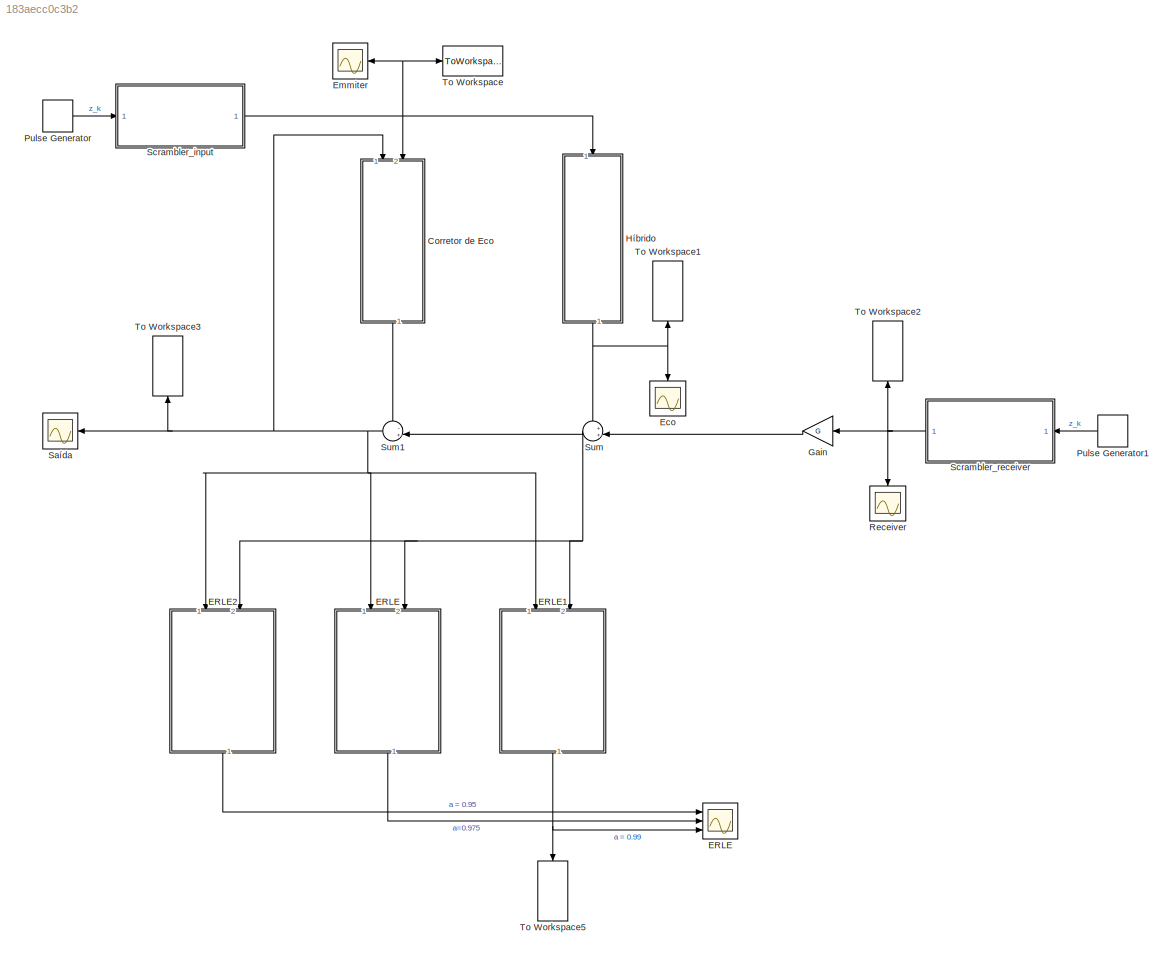
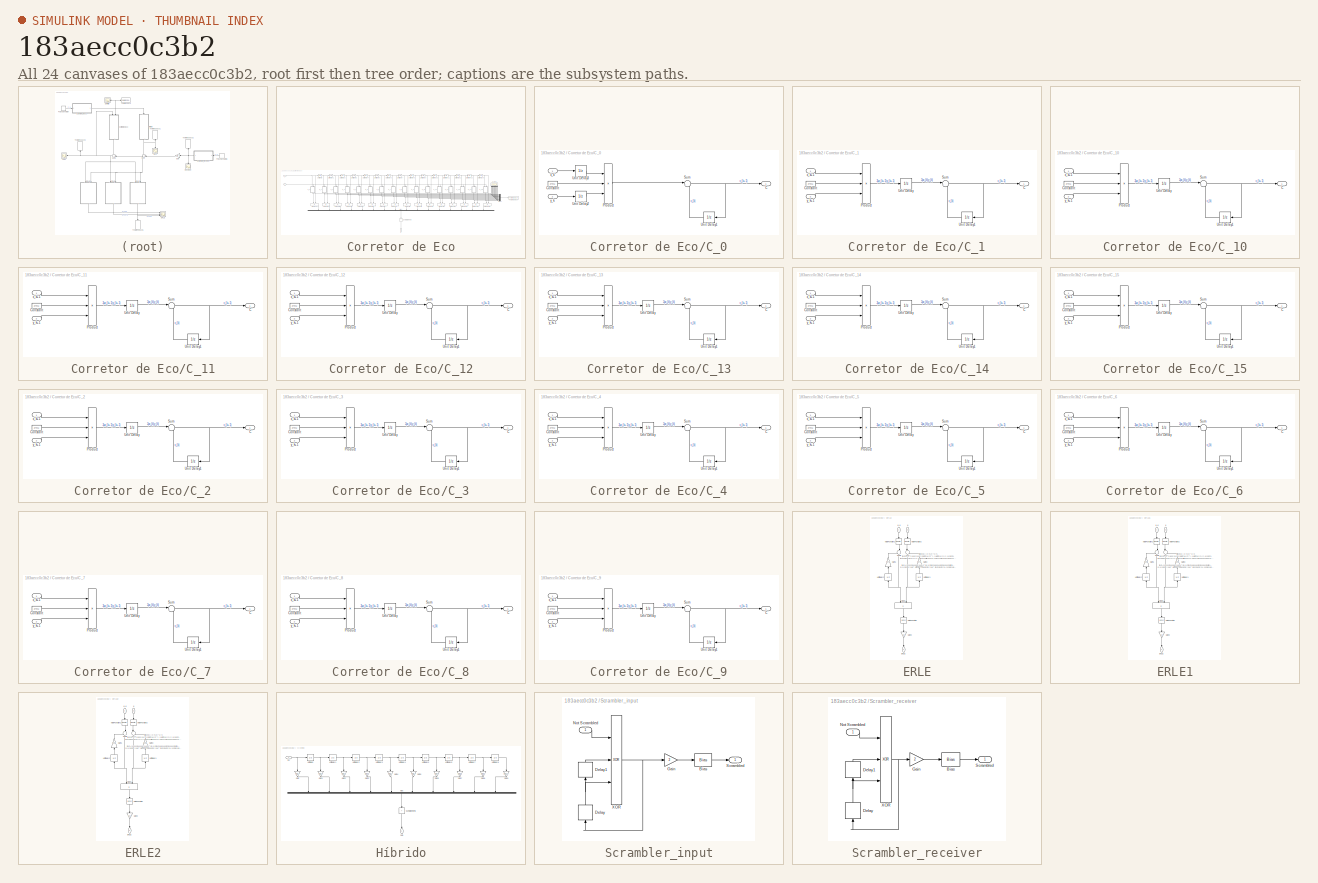
[diagram: thumbnail index - all 24 canvases of the model, root first then tree order]
MODEL slx_183aecc0c3b2
KIND model
CONFIG AbsTol = auto
CONFIG EnableMultiTasking = off
CONFIG FixedStep = sampleTime
CONFIG MaxStep = auto
CONFIG MinStep = auto
CONFIG RelTol = 1e-3
CONFIG SampleTimeConstraint = Unconstrained
CONFIG Solver = FixedStepAuto
CONFIG SolverName = FixedStepAuto
CONFIG StartTime = 0.0
CONFIG StopTime = 1000.0
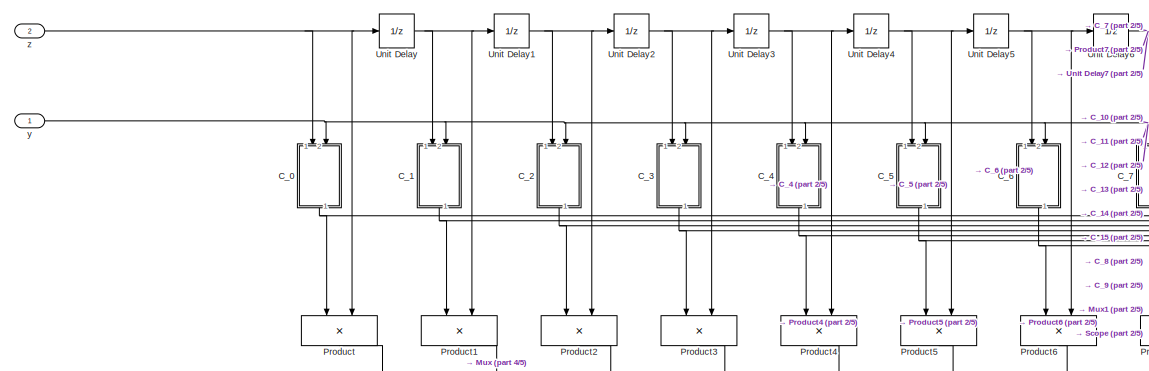
[diagram: Corretor de Eco - part 1/5, top left region]
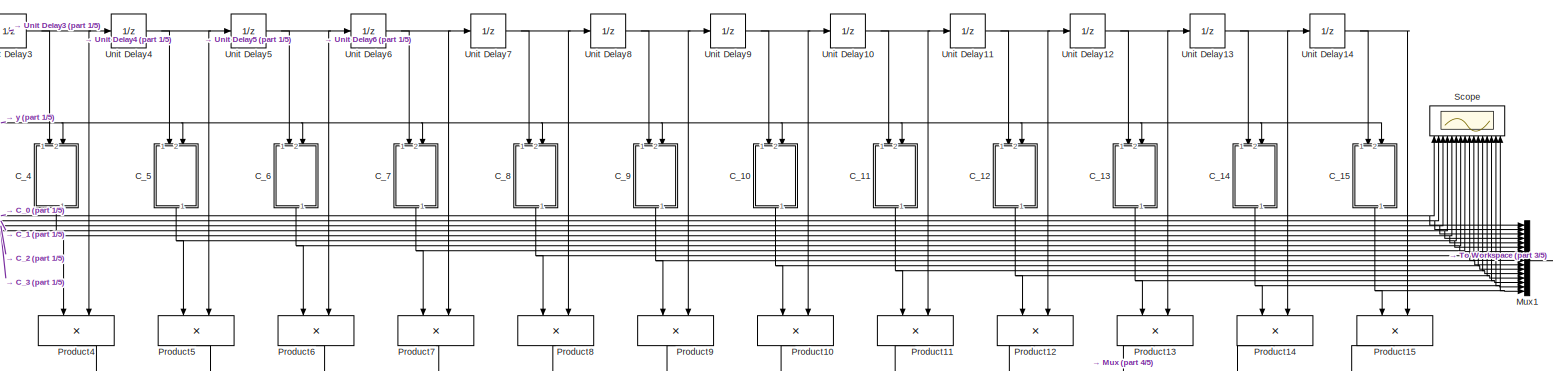
[diagram: Corretor de Eco - part 2/5, top center region]
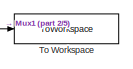
[diagram: Corretor de Eco - part 3/5, middle right region]
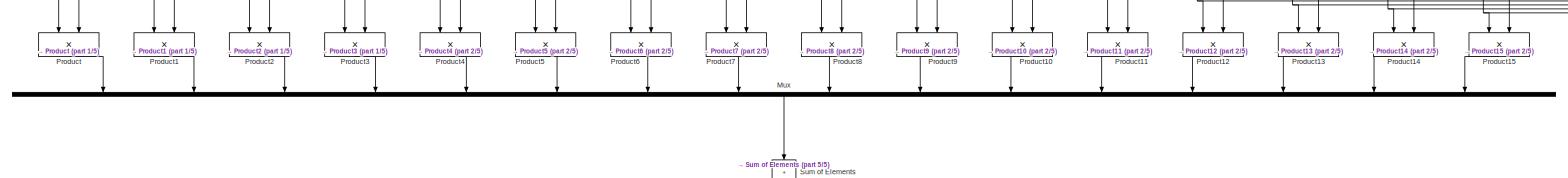
[diagram: Corretor de Eco - part 4/5, full width, middle band]
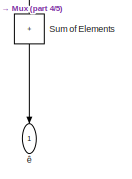
[diagram: Corretor de Eco - part 5/5, bottom center region]
BLOCK [SubSystem] Corretor de Eco
  NameLocation = left
  Ports = [2, 1]
  RequestExecContextInheritance = off
BLOCK [SubSystem] Corretor de Eco/C_0
  NameLocation = left
  Ports = [2, 1]
  RequestExecContextInheritance = off
BLOCK [Outport] Corretor de Eco/C_0/C
  VectorParamsAs1DForOutWhenUnconnected = off
BLOCK [Constant] Corretor de Eco/C_0/Constant
  Value = 2*mu
BLOCK [Product] Corretor de Eco/C_0/Product
  Inputs = 3
  Ports = [3, 1]
BLOCK [Sum] Corretor de Eco/C_0/Sum
  Inputs = |++
  Ports = [2, 1]
BLOCK [UnitDelay] Corretor de Eco/C_0/Unit Delay1
  HasFrameUpgradeWarning = on
  NameLocation = top
  SampleTime = -1
BLOCK [UnitDelay] Corretor de Eco/C_0/Unit Delay2
  HasFrameUpgradeWarning = on
  SampleTime = -1
BLOCK [UnitDelay] Corretor de Eco/C_0/Unit Delay3
  HasFrameUpgradeWarning = on
  SampleTime = -1
BLOCK [Inport] Corretor de Eco/C_0/x_k
BLOCK [Inport] Corretor de Eco/C_0/y_k
  Port = 2
BLOCK [SubSystem] Corretor de Eco/C_1
  NameLocation = left
  Ports = [2, 1]
  RequestExecContextInheritance = off
BLOCK [Outport] Corretor de Eco/C_1/C
  VectorParamsAs1DForOutWhenUnconnected = off
BLOCK [Constant] Corretor de Eco/C_1/Constant
  Value = 2*mu
BLOCK [Product] Corretor de Eco/C_1/Product
  Inputs = 3
  Ports = [3, 1]
BLOCK [Sum] Corretor de Eco/C_1/Sum
  Inputs = |++
  Ports = [2, 1]
BLOCK [UnitDelay] Corretor de Eco/C_1/Unit Delay
  HasFrameUpgradeWarning = on
  SampleTime = -1
BLOCK [UnitDelay] Corretor de Eco/C_1/Unit Delay1
  HasFrameUpgradeWarning = on
  NameLocation = top
  SampleTime = -1
BLOCK [Inport] Corretor de Eco/C_1/x_k+1
BLOCK [Inport] Corretor de Eco/C_1/y_k+1
  Port = 2
BLOCK [SubSystem] Corretor de Eco/C_10
  NameLocation = left
  Ports = [2, 1]
  RequestExecContextInheritance = off
BLOCK [Outport] Corretor de Eco/C_10/C
  VectorParamsAs1DForOutWhenUnconnected = off
BLOCK [Constant] Corretor de Eco/C_10/Constant
  Value = 2*mu
BLOCK [Product] Corretor de Eco/C_10/Product
  Inputs = 3
  Ports = [3, 1]
BLOCK [Sum] Corretor de Eco/C_10/Sum
  Inputs = |++
  Ports = [2, 1]
BLOCK [UnitDelay] Corretor de Eco/C_10/Unit Delay
  HasFrameUpgradeWarning = on
  SampleTime = -1
BLOCK [UnitDelay] Corretor de Eco/C_10/Unit Delay1
  HasFrameUpgradeWarning = on
  NameLocation = top
  SampleTime = -1
BLOCK [Inport] Corretor de Eco/C_10/x_k+1
BLOCK [Inport] Corretor de Eco/C_10/y_k+1
  Port = 2
BLOCK [SubSystem] Corretor de Eco/C_11
  NameLocation = left
  Ports = [2, 1]
  RequestExecContextInheritance = off
BLOCK [Outport] Corretor de Eco/C_11/C
  VectorParamsAs1DForOutWhenUnconnected = off
BLOCK [Constant] Corretor de Eco/C_11/Constant
  Value = 2*mu
BLOCK [Product] Corretor de Eco/C_11/Product
  Inputs = 3
  Ports = [3, 1]
BLOCK [Sum] Corretor de Eco/C_11/Sum
  Inputs = |++
  Ports = [2, 1]
BLOCK [UnitDelay] Corretor de Eco/C_11/Unit Delay
  HasFrameUpgradeWarning = on
  SampleTime = -1
BLOCK [UnitDelay] Corretor de Eco/C_11/Unit Delay1
  HasFrameUpgradeWarning = on
  NameLocation = top
  SampleTime = -1
BLOCK [Inport] Corretor de Eco/C_11/x_k+1
BLOCK [Inport] Corretor de Eco/C_11/y_k+1
  Port = 2
BLOCK [SubSystem] Corretor de Eco/C_12
  NameLocation = left
  Ports = [2, 1]
  RequestExecContextInheritance = off
BLOCK [Outport] Corretor de Eco/C_12/C
  VectorParamsAs1DForOutWhenUnconnected = off
BLOCK [Constant] Corretor de Eco/C_12/Constant
  Value = 2*mu
BLOCK [Product] Corretor de Eco/C_12/Product
  Inputs = 3
  Ports = [3, 1]
BLOCK [Sum] Corretor de Eco/C_12/Sum
  Inputs = |++
  Ports = [2, 1]
BLOCK [UnitDelay] Corretor de Eco/C_12/Unit Delay
  HasFrameUpgradeWarning = on
  SampleTime = -1
BLOCK [UnitDelay] Corretor de Eco/C_12/Unit Delay1
  HasFrameUpgradeWarning = on
  NameLocation = top
  SampleTime = -1
BLOCK [Inport] Corretor de Eco/C_12/x_k+1
BLOCK [Inport] Corretor de Eco/C_12/y_k+1
  Port = 2
BLOCK [SubSystem] Corretor de Eco/C_13
  NameLocation = left
  Ports = [2, 1]
  RequestExecContextInheritance = off
BLOCK [Outport] Corretor de Eco/C_13/C
  VectorParamsAs1DForOutWhenUnconnected = off
BLOCK [Constant] Corretor de Eco/C_13/Constant
  Value = 2*mu
BLOCK [Product] Corretor de Eco/C_13/Product
  Inputs = 3
  Ports = [3, 1]
BLOCK [Sum] Corretor de Eco/C_13/Sum
  Inputs = |++
  Ports = [2, 1]
BLOCK [UnitDelay] Corretor de Eco/C_13/Unit Delay
  HasFrameUpgradeWarning = on
  SampleTime = -1
BLOCK [UnitDelay] Corretor de Eco/C_13/Unit Delay1
  HasFrameUpgradeWarning = on
  NameLocation = top
  SampleTime = -1
BLOCK [Inport] Corretor de Eco/C_13/x_k+1
BLOCK [Inport] Corretor de Eco/C_13/y_k+1
  Port = 2
BLOCK [SubSystem] Corretor de Eco/C_14
  NameLocation = left
  Ports = [2, 1]
  RequestExecContextInheritance = off
BLOCK [Outport] Corretor de Eco/C_14/C
  VectorParamsAs1DForOutWhenUnconnected = off
BLOCK [Constant] Corretor de Eco/C_14/Constant
  Value = 2*mu
BLOCK [Product] Corretor de Eco/C_14/Product
  Inputs = 3
  Ports = [3, 1]
BLOCK [Sum] Corretor de Eco/C_14/Sum
  Inputs = |++
  Ports = [2, 1]
BLOCK [UnitDelay] Corretor de Eco/C_14/Unit Delay
  HasFrameUpgradeWarning = on
  SampleTime = -1
BLOCK [UnitDelay] Corretor de Eco/C_14/Unit Delay1
  HasFrameUpgradeWarning = on
  NameLocation = top
  SampleTime = -1
BLOCK [Inport] Corretor de Eco/C_14/x_k+1
BLOCK [Inport] Corretor de Eco/C_14/y_k+1
  Port = 2
BLOCK [SubSystem] Corretor de Eco/C_15
  NameLocation = left
  Ports = [2, 1]
  RequestExecContextInheritance = off
BLOCK [Outport] Corretor de Eco/C_15/C
  VectorParamsAs1DForOutWhenUnconnected = off
BLOCK [Constant] Corretor de Eco/C_15/Constant
  Value = 2*mu
BLOCK [Product] Corretor de Eco/C_15/Product
  Inputs = 3
  Ports = [3, 1]
BLOCK [Sum] Corretor de Eco/C_15/Sum
  Inputs = |++
  Ports = [2, 1]
BLOCK [UnitDelay] Corretor de Eco/C_15/Unit Delay
  HasFrameUpgradeWarning = on
  SampleTime = -1
BLOCK [UnitDelay] Corretor de Eco/C_15/Unit Delay1
  HasFrameUpgradeWarning = on
  NameLocation = top
  SampleTime = -1
BLOCK [Inport] Corretor de Eco/C_15/x_k+1
BLOCK [Inport] Corretor de Eco/C_15/y_k+1
  Port = 2
BLOCK [SubSystem] Corretor de Eco/C_2
  NameLocation = left
  Ports = [2, 1]
  RequestExecContextInheritance = off
BLOCK [Outport] Corretor de Eco/C_2/C
  VectorParamsAs1DForOutWhenUnconnected = off
BLOCK [Constant] Corretor de Eco/C_2/Constant
  Value = 2*mu
BLOCK [Product] Corretor de Eco/C_2/Product
  Inputs = 3
  Ports = [3, 1]
BLOCK [Sum] Corretor de Eco/C_2/Sum
  Inputs = |++
  Ports = [2, 1]
BLOCK [UnitDelay] Corretor de Eco/C_2/Unit Delay
  HasFrameUpgradeWarning = on
  SampleTime = -1
BLOCK [UnitDelay] Corretor de Eco/C_2/Unit Delay1
  HasFrameUpgradeWarning = on
  NameLocation = top
  SampleTime = -1
BLOCK [Inport] Corretor de Eco/C_2/x_k+1
BLOCK [Inport] Corretor de Eco/C_2/y_k+1
  Port = 2
BLOCK [SubSystem] Corretor de Eco/C_3
  NameLocation = left
  Ports = [2, 1]
  RequestExecContextInheritance = off
BLOCK [Outport] Corretor de Eco/C_3/C
  VectorParamsAs1DForOutWhenUnconnected = off
BLOCK [Constant] Corretor de Eco/C_3/Constant
  Value = 2*mu
BLOCK [Product] Corretor de Eco/C_3/Product
  Inputs = 3
  Ports = [3, 1]
BLOCK [Sum] Corretor de Eco/C_3/Sum
  Inputs = |++
  Ports = [2, 1]
BLOCK [UnitDelay] Corretor de Eco/C_3/Unit Delay
  HasFrameUpgradeWarning = on
  SampleTime = -1
BLOCK [UnitDelay] Corretor de Eco/C_3/Unit Delay1
  HasFrameUpgradeWarning = on
  NameLocation = top
  SampleTime = -1
BLOCK [Inport] Corretor de Eco/C_3/x_k+1
BLOCK [Inport] Corretor de Eco/C_3/y_k+1
  Port = 2
BLOCK [SubSystem] Corretor de Eco/C_4
  NameLocation = left
  Ports = [2, 1]
  RequestExecContextInheritance = off
BLOCK [Outport] Corretor de Eco/C_4/C
  VectorParamsAs1DForOutWhenUnconnected = off
BLOCK [Constant] Corretor de Eco/C_4/Constant
  Value = 2*mu
BLOCK [Product] Corretor de Eco/C_4/Product
  Inputs = 3
  Ports = [3, 1]
BLOCK [Sum] Corretor de Eco/C_4/Sum
  Inputs = |++
  Ports = [2, 1]
BLOCK [UnitDelay] Corretor de Eco/C_4/Unit Delay
  HasFrameUpgradeWarning = on
  SampleTime = -1
BLOCK [UnitDelay] Corretor de Eco/C_4/Unit Delay1
  HasFrameUpgradeWarning = on
  NameLocation = top
  SampleTime = -1
BLOCK [Inport] Corretor de Eco/C_4/x_k+1
BLOCK [Inport] Corretor de Eco/C_4/y_k+1
  Port = 2
BLOCK [SubSystem] Corretor de Eco/C_5
  NameLocation = left
  Ports = [2, 1]
  RequestExecContextInheritance = off
BLOCK [Outport] Corretor de Eco/C_5/C
  VectorParamsAs1DForOutWhenUnconnected = off
BLOCK [Constant] Corretor de Eco/C_5/Constant
  Value = 2*mu
BLOCK [Product] Corretor de Eco/C_5/Product
  Inputs = 3
  Ports = [3, 1]
BLOCK [Sum] Corretor de Eco/C_5/Sum
  Inputs = |++
  Ports = [2, 1]
BLOCK [UnitDelay] Corretor de Eco/C_5/Unit Delay
  HasFrameUpgradeWarning = on
  SampleTime = -1
BLOCK [UnitDelay] Corretor de Eco/C_5/Unit Delay1
  HasFrameUpgradeWarning = on
  NameLocation = top
  SampleTime = -1
BLOCK [Inport] Corretor de Eco/C_5/x_k+1
BLOCK [Inport] Corretor de Eco/C_5/y_k+1
  Port = 2
BLOCK [SubSystem] Corretor de Eco/C_6
  NameLocation = left
  Ports = [2, 1]
  RequestExecContextInheritance = off
BLOCK [Outport] Corretor de Eco/C_6/C
  VectorParamsAs1DForOutWhenUnconnected = off
BLOCK [Constant] Corretor de Eco/C_6/Constant
  Value = 2*mu
BLOCK [Product] Corretor de Eco/C_6/Product
  Inputs = 3
  Ports = [3, 1]
BLOCK [Sum] Corretor de Eco/C_6/Sum
  Inputs = |++
  Ports = [2, 1]
BLOCK [UnitDelay] Corretor de Eco/C_6/Unit Delay
  HasFrameUpgradeWarning = on
  SampleTime = -1
BLOCK [UnitDelay] Corretor de Eco/C_6/Unit Delay1
  HasFrameUpgradeWarning = on
  NameLocation = top
  SampleTime = -1
BLOCK [Inport] Corretor de Eco/C_6/x_k+1
BLOCK [Inport] Corretor de Eco/C_6/y_k+1
  Port = 2
BLOCK [SubSystem] Corretor de Eco/C_7
  NameLocation = left
  Ports = [2, 1]
  RequestExecContextInheritance = off
BLOCK [Outport] Corretor de Eco/C_7/C
  VectorParamsAs1DForOutWhenUnconnected = off
BLOCK [Constant] Corretor de Eco/C_7/Constant
  Value = 2*mu
BLOCK [Product] Corretor de Eco/C_7/Product
  Inputs = 3
  Ports = [3, 1]
BLOCK [Sum] Corretor de Eco/C_7/Sum
  Inputs = |++
  Ports = [2, 1]
BLOCK [UnitDelay] Corretor de Eco/C_7/Unit Delay
  HasFrameUpgradeWarning = on
  SampleTime = -1
BLOCK [UnitDelay] Corretor de Eco/C_7/Unit Delay1
  HasFrameUpgradeWarning = on
  NameLocation = top
  SampleTime = -1
BLOCK [Inport] Corretor de Eco/C_7/x_k+1
BLOCK [Inport] Corretor de Eco/C_7/y_k+1
  Port = 2
BLOCK [SubSystem] Corretor de Eco/C_8
  NameLocation = left
  Ports = [2, 1]
  RequestExecContextInheritance = off
BLOCK [Outport] Corretor de Eco/C_8/C
  VectorParamsAs1DForOutWhenUnconnected = off
BLOCK [Constant] Corretor de Eco/C_8/Constant
  Value = 2*mu
BLOCK [Product] Corretor de Eco/C_8/Product
  Inputs = 3
  Ports = [3, 1]
BLOCK [Sum] Corretor de Eco/C_8/Sum
  Inputs = |++
  Ports = [2, 1]
BLOCK [UnitDelay] Corretor de Eco/C_8/Unit Delay
  HasFrameUpgradeWarning = on
  SampleTime = -1
BLOCK [UnitDelay] Corretor de Eco/C_8/Unit Delay1
  HasFrameUpgradeWarning = on
  NameLocation = top
  SampleTime = -1
BLOCK [Inport] Corretor de Eco/C_8/x_k+1
BLOCK [Inport] Corretor de Eco/C_8/y_k+1
  Port = 2
BLOCK [SubSystem] Corretor de Eco/C_9
  NameLocation = left
  Ports = [2, 1]
  RequestExecContextInheritance = off
BLOCK [Outport] Corretor de Eco/C_9/C
  VectorParamsAs1DForOutWhenUnconnected = off
BLOCK [Constant] Corretor de Eco/C_9/Constant
  Value = 2*mu
BLOCK [Product] Corretor de Eco/C_9/Product
  Inputs = 3
  Ports = [3, 1]
BLOCK [Sum] Corretor de Eco/C_9/Sum
  Inputs = |++
  Ports = [2, 1]
BLOCK [UnitDelay] Corretor de Eco/C_9/Unit Delay
  HasFrameUpgradeWarning = on
  SampleTime = -1
BLOCK [UnitDelay] Corretor de Eco/C_9/Unit Delay1
  HasFrameUpgradeWarning = on
  NameLocation = top
  SampleTime = -1
BLOCK [Inport] Corretor de Eco/C_9/x_k+1
BLOCK [Inport] Corretor de Eco/C_9/y_k+1
  Port = 2
BLOCK [Mux] Corretor de Eco/Mux
  DisplayOption = bar
  Inputs = 16
  NameLocation = left
  Ports = [16, 1]
BLOCK [Mux] Corretor de Eco/Mux1
  DisplayOption = bar
  Inputs = 16
  Ports = [16, 1]
BLOCK [Product] Corretor de Eco/Product
  NameLocation = left
  Ports = [2, 1]
BLOCK [Product] Corretor de Eco/Product1
  NameLocation = left
  Ports = [2, 1]
BLOCK [Product] Corretor de Eco/Product10
  NameLocation = left
  Ports = [2, 1]
BLOCK [Product] Corretor de Eco/Product11
  NameLocation = left
  Ports = [2, 1]
BLOCK [Product] Corretor de Eco/Product12
  NameLocation = left
  Ports = [2, 1]
BLOCK [Product] Corretor de Eco/Product13
  NameLocation = left
  Ports = [2, 1]
BLOCK [Product] Corretor de Eco/Product14
  NameLocation = left
  Ports = [2, 1]
BLOCK [Product] Corretor de Eco/Product15
  NameLocation = left
  Ports = [2, 1]
BLOCK [Product] Corretor de Eco/Product2
  NameLocation = left
  Ports = [2, 1]
BLOCK [Product] Corretor de Eco/Product3
  NameLocation = left
  Ports = [2, 1]
BLOCK [Product] Corretor de Eco/Product4
  NameLocation = left
  Ports = [2, 1]
BLOCK [Product] Corretor de Eco/Product5
  NameLocation = left
  Ports = [2, 1]
BLOCK [Product] Corretor de Eco/Product6
  NameLocation = left
  Ports = [2, 1]
BLOCK [Product] Corretor de Eco/Product7
  NameLocation = left
  Ports = [2, 1]
BLOCK [Product] Corretor de Eco/Product8
  NameLocation = left
  Ports = [2, 1]
BLOCK [Product] Corretor de Eco/Product9
  NameLocation = left
  Ports = [2, 1]
BLOCK [Scope] Corretor de Eco/Scope
  Floating = off
  NameLocation = right
  NumInputPorts = 16
  Ports = [16]
  ScopeSpecificationString = Simulink.scopes.TimeScopeBlockCfg('CurrentConfiguration', extmgr.ConfigurationSet(extmgr.Configuration('Core','General UI',true),extmgr.Configuration('Core','Source UI',true),extmgr.Configuration('Sources','WiredSimulink',true,'DataLoggingVariableName','ScopeData1'),extmgr.Configuration('Visuals','Time Domain',true,'SerializedDisplays',{struct('MinYLimReal','-0.13097','MaxYLimReal','0.06125','YLab...<+11887ch>
BLOCK [Sum] Corretor de Eco/Sum of Elements
  IconShape = rectangular
  Inputs = +
  NameLocation = left
  Ports = [1, 1]
BLOCK [ToWorkspace] Corretor de Eco/To Workspace
  FixptAsFi = on
  MaxDataPoints = inf
  Ports = [1]
  SampleTime = -1
  SaveFormat = Structure With Time
  VariableName = Cancelador_Eco_Data
BLOCK [UnitDelay] Corretor de Eco/Unit Delay
  HasFrameUpgradeWarning = on
  SampleTime = -1
BLOCK [UnitDelay] Corretor de Eco/Unit Delay1
  HasFrameUpgradeWarning = on
  SampleTime = -1
BLOCK [UnitDelay] Corretor de Eco/Unit Delay10
  HasFrameUpgradeWarning = on
  SampleTime = -1
BLOCK [UnitDelay] Corretor de Eco/Unit Delay11
  HasFrameUpgradeWarning = on
  SampleTime = -1
BLOCK [UnitDelay] Corretor de Eco/Unit Delay12
  HasFrameUpgradeWarning = on
  SampleTime = -1
BLOCK [UnitDelay] Corretor de Eco/Unit Delay13
  HasFrameUpgradeWarning = on
  SampleTime = -1
BLOCK [UnitDelay] Corretor de Eco/Unit Delay14
  HasFrameUpgradeWarning = on
  SampleTime = -1
BLOCK [UnitDelay] Corretor de Eco/Unit Delay2
  HasFrameUpgradeWarning = on
  SampleTime = -1
BLOCK [UnitDelay] Corretor de Eco/Unit Delay3
  HasFrameUpgradeWarning = on
  SampleTime = -1
BLOCK [UnitDelay] Corretor de Eco/Unit Delay4
  HasFrameUpgradeWarning = on
  SampleTime = -1
BLOCK [UnitDelay] Corretor de Eco/Unit Delay5
  HasFrameUpgradeWarning = on
  SampleTime = -1
BLOCK [UnitDelay] Corretor de Eco/Unit Delay6
  HasFrameUpgradeWarning = on
  SampleTime = -1
BLOCK [UnitDelay] Corretor de Eco/Unit Delay7
  HasFrameUpgradeWarning = on
  SampleTime = -1
BLOCK [UnitDelay] Corretor de Eco/Unit Delay8
  HasFrameUpgradeWarning = on
  SampleTime = -1
BLOCK [UnitDelay] Corretor de Eco/Unit Delay9
  HasFrameUpgradeWarning = on
  SampleTime = -1
BLOCK [Inport] Corretor de Eco/y
BLOCK [Inport] Corretor de Eco/z
  Port = 2
BLOCK [Outport] Corretor de Eco/ê
  NameLocation = right
  VectorParamsAs1DForOutWhenUnconnected = off
BLOCK [SubSystem] ERLE
  NameLocation = left
  Ports = [2, 1]
  RequestExecContextInheritance = off
BLOCK [Scope] ERLE 
  Floating = off
  NumInputPorts = 3
  Ports = [3]
  ScopeSpecificationString = Simulink.scopes.TimeScopeBlockCfg('CurrentConfiguration', extmgr.ConfigurationSet(extmgr.Configuration('Core','General UI',true),extmgr.Configuration('Core','Source UI',true),extmgr.Configuration('Sources','WiredSimulink',true,'DataLoggingVariableName','ScopeData2'),extmgr.Configuration('Visuals','Time Domain',true,'SerializedDisplays',{struct('MinYLimReal','-2.70545','MaxYLimReal','22.56865','YLa...<+1566ch>
BLOCK [Product] ERLE/Divide
  Inputs = /*
  NameLocation = left
  Ports = [2, 1]
BLOCK [Outport] ERLE/ERLE
  NameLocation = left
  VectorParamsAs1DForOutWhenUnconnected = off
BLOCK [Gain] ERLE/Gain1
  Gain = 0.975
  NameLocation = right
BLOCK [Gain] ERLE/Gain2
  Gain = 10
  NameLocation = left
BLOCK [Gain] ERLE/Gain3
  Gain = 0.975
  NameLocation = right
BLOCK [Math] ERLE/Math Function
  NameLocation = left
  Operator = log10
  Ports = [1, 1]
  SignedPower = on
BLOCK [Math] ERLE/Math Function1
  NameLocation = left
  Operator = magnitude^2
  Ports = [1, 1]
  SignedPower = on
BLOCK [Math] ERLE/Math Function2
  NameLocation = left
  Operator = magnitude^2
  Ports = [1, 1]
  SignedPower = on
BLOCK [Sum] ERLE/Sum2
  Inputs = ++|
  NameLocation = left
  Ports = [2, 1]
BLOCK [Sum] ERLE/Sum3
  Inputs = |++
  NameLocation = left
  Ports = [2, 1]
BLOCK [UnitDelay] ERLE/Unit Delay1
  HasFrameUpgradeWarning = on
  NameLocation = right
  SampleTime = -1
BLOCK [UnitDelay] ERLE/Unit Delay2
  HasFrameUpgradeWarning = on
  NameLocation = right
  SampleTime = -1
BLOCK [Inport] ERLE/e
  NameLocation = right
  Port = 2
BLOCK [Inport] ERLE/e - ê
  NameLocation = left
BLOCK [SubSystem] ERLE1
  NameLocation = left
  Ports = [2, 1]
  RequestExecContextInheritance = off
BLOCK [Product] ERLE1/Divide
  Inputs = /*
  NameLocation = left
  Ports = [2, 1]
BLOCK [Outport] ERLE1/ERLE
  NameLocation = left
  VectorParamsAs1DForOutWhenUnconnected = off
BLOCK [Gain] ERLE1/Gain1
  Gain = 0.99
  NameLocation = right
BLOCK [Gain] ERLE1/Gain2
  Gain = 10
  NameLocation = left
BLOCK [Gain] ERLE1/Gain3
  Gain = 0.99
  NameLocation = right
BLOCK [Math] ERLE1/Math Function
  NameLocation = left
  Operator = log10
  Ports = [1, 1]
  SignedPower = on
BLOCK [Math] ERLE1/Math Function1
  NameLocation = left
  Operator = magnitude^2
  Ports = [1, 1]
  SignedPower = on
BLOCK [Math] ERLE1/Math Function2
  NameLocation = left
  Operator = magnitude^2
  Ports = [1, 1]
  SignedPower = on
BLOCK [Sum] ERLE1/Sum2
  Inputs = ++|
  NameLocation = left
  Ports = [2, 1]
BLOCK [Sum] ERLE1/Sum3
  Inputs = |++
  NameLocation = left
  Ports = [2, 1]
BLOCK [UnitDelay] ERLE1/Unit Delay1
  HasFrameUpgradeWarning = on
  NameLocation = right
  SampleTime = -1
BLOCK [UnitDelay] ERLE1/Unit Delay2
  HasFrameUpgradeWarning = on
  NameLocation = right
  SampleTime = -1
BLOCK [Inport] ERLE1/e
  NameLocation = right
  Port = 2
BLOCK [Inport] ERLE1/e - ê
  NameLocation = left
BLOCK [SubSystem] ERLE2
  NameLocation = left
  Ports = [2, 1]
  RequestExecContextInheritance = off
BLOCK [Product] ERLE2/Divide
  Inputs = /*
  NameLocation = left
  Ports = [2, 1]
BLOCK [Outport] ERLE2/ERLE
  NameLocation = left
  VectorParamsAs1DForOutWhenUnconnected = off
BLOCK [Gain] ERLE2/Gain1
  Gain = 0.95
  NameLocation = right
BLOCK [Gain] ERLE2/Gain2
  Gain = 10
  NameLocation = left
BLOCK [Gain] ERLE2/Gain3
  Gain = 0.95
  NameLocation = right
BLOCK [Math] ERLE2/Math Function
  NameLocation = left
  Operator = log10
  Ports = [1, 1]
  SignedPower = on
BLOCK [Math] ERLE2/Math Function1
  NameLocation = left
  Operator = magnitude^2
  Ports = [1, 1]
  SignedPower = on
BLOCK [Math] ERLE2/Math Function2
  NameLocation = left
  Operator = magnitude^2
  Ports = [1, 1]
  SignedPower = on
BLOCK [Sum] ERLE2/Sum2
  Inputs = ++|
  NameLocation = left
  Ports = [2, 1]
BLOCK [Sum] ERLE2/Sum3
  Inputs = |++
  NameLocation = left
  Ports = [2, 1]
BLOCK [UnitDelay] ERLE2/Unit Delay1
  HasFrameUpgradeWarning = on
  NameLocation = right
  SampleTime = -1
BLOCK [UnitDelay] ERLE2/Unit Delay2
  HasFrameUpgradeWarning = on
  NameLocation = right
  SampleTime = -1
BLOCK [Inport] ERLE2/e
  NameLocation = right
  Port = 2
BLOCK [Inport] ERLE2/e - ê
  NameLocation = left
BLOCK [Scope] Eco
  Floating = off
  NameLocation = left
  NumInputPorts = 1
  Ports = [1]
  ScopeSpecificationString = Simulink.scopes.TimeScopeBlockCfg('CurrentConfiguration', extmgr.ConfigurationSet(extmgr.Configuration('Core','General UI',true),extmgr.Configuration('Core','Source UI',true),extmgr.Configuration('Sources','WiredSimulink',true,'DataLoggingVariableName','ScopeData2'),extmgr.Configuration('Visuals','Time Domain',true,'SerializedDisplays',{struct('MinYLimReal','-2.7','MaxYLimReal','2.7','YLabelReal',...<+1492ch>
BLOCK [Scope] Emmiter
  Floating = off
  NameLocation = top
  NumInputPorts = 1
  Ports = [1]
  ScopeSpecificationString = Simulink.scopes.TimeScopeBlockCfg('CurrentConfiguration', extmgr.ConfigurationSet(extmgr.Configuration('Core','General UI',true),extmgr.Configuration('Core','Source UI',true),extmgr.Configuration('Sources','WiredSimulink',true,'DataLoggingVariableName','ScopeData1'),extmgr.Configuration('Visuals','Time Domain',true,'SerializedDisplays',{struct('MinYLimReal','-1.25','MaxYLimReal','1.25','YLabelReal...<+1506ch>
BLOCK [Gain] Gain
  Gain = G
  NameLocation = top
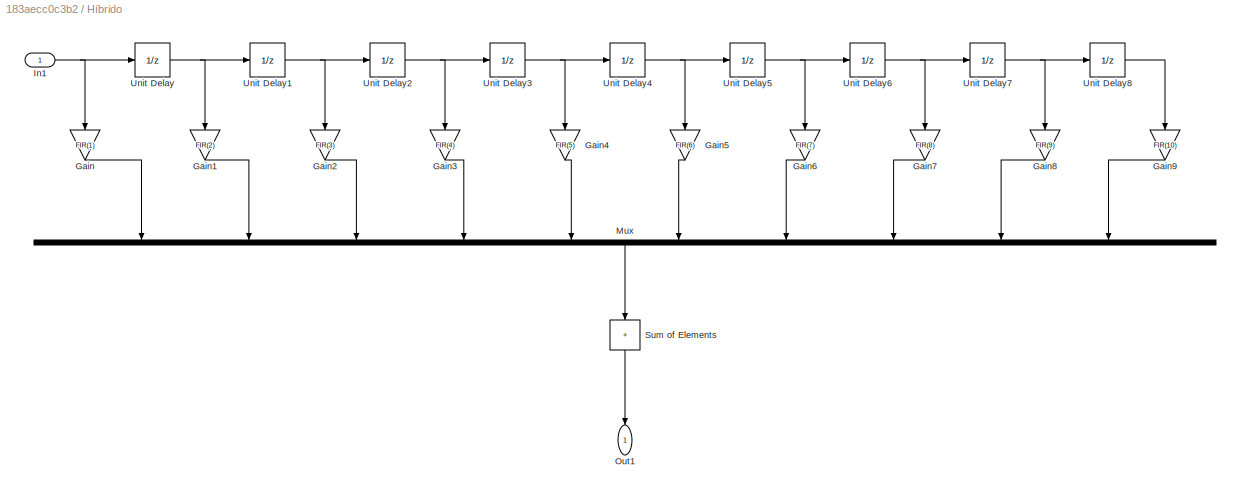
BLOCK [SubSystem] Híbrido
  NameLocation = left
  Ports = [1, 1]
  RequestExecContextInheritance = off
BLOCK [Gain] Híbrido/Gain
  Gain = FIR(1)
  NameLocation = left
BLOCK [Gain] Híbrido/Gain1
  Gain = FIR(2)
  NameLocation = left
BLOCK [Gain] Híbrido/Gain2
  Gain = FIR(3)
  NameLocation = left
BLOCK [Gain] Híbrido/Gain3
  Gain = FIR(4)
  NameLocation = left
BLOCK [Gain] Híbrido/Gain4
  Gain = FIR(5)
  NameLocation = left
BLOCK [Gain] Híbrido/Gain5
  Gain = FIR(6)
  NameLocation = left
BLOCK [Gain] Híbrido/Gain6
  Gain = FIR(7)
  NameLocation = left
BLOCK [Gain] Híbrido/Gain7
  Gain = FIR(8)
  NameLocation = left
BLOCK [Gain] Híbrido/Gain8
  Gain = FIR(9)
  NameLocation = left
BLOCK [Gain] Híbrido/Gain9
  Gain = FIR(10)
  NameLocation = left
BLOCK [Inport] Híbrido/In1
BLOCK [Mux] Híbrido/Mux
  DisplayOption = bar
  Inputs = 10
  NameLocation = left
  Ports = [10, 1]
BLOCK [Outport] Híbrido/Out1
  NameLocation = left
  VectorParamsAs1DForOutWhenUnconnected = off
BLOCK [Sum] Híbrido/Sum of Elements
  IconShape = rectangular
  Inputs = +
  NameLocation = left
  Ports = [1, 1]
BLOCK [UnitDelay] Híbrido/Unit Delay
  HasFrameUpgradeWarning = on
  SampleTime = -1
BLOCK [UnitDelay] Híbrido/Unit Delay1
  HasFrameUpgradeWarning = on
  SampleTime = -1
BLOCK [UnitDelay] Híbrido/Unit Delay2
  HasFrameUpgradeWarning = on
  SampleTime = -1
BLOCK [UnitDelay] Híbrido/Unit Delay3
  HasFrameUpgradeWarning = on
  SampleTime = -1
BLOCK [UnitDelay] Híbrido/Unit Delay4
  HasFrameUpgradeWarning = on
  SampleTime = -1
BLOCK [UnitDelay] Híbrido/Unit Delay5
  HasFrameUpgradeWarning = on
  SampleTime = -1
BLOCK [UnitDelay] Híbrido/Unit Delay6
  HasFrameUpgradeWarning = on
  SampleTime = -1
BLOCK [UnitDelay] Híbrido/Unit Delay7
  HasFrameUpgradeWarning = on
  SampleTime = -1
BLOCK [UnitDelay] Híbrido/Unit Delay8
  HasFrameUpgradeWarning = on
  SampleTime = -1
BLOCK [DiscretePulseGenerator] Pulse Generator
  Ports = [0, 1]
  SampleTime = sampleTime
BLOCK [DiscretePulseGenerator] Pulse Generator1
  NameLocation = top
  Ports = [0, 1]
  SampleTime = sampleTime
BLOCK [Scope] Receiver
  Floating = off
  NameLocation = left
  NumInputPorts = 1
  Ports = [1]
  ScopeSpecificationString = Simulink.scopes.TimeScopeBlockCfg('CurrentConfiguration', extmgr.ConfigurationSet(extmgr.Configuration('Core','General UI',true),extmgr.Configuration('Core','Source UI',true),extmgr.Configuration('Sources','WiredSimulink',true,'DataLoggingVariableName','ScopeData2'),extmgr.Configuration('Visuals','Time Domain',true,'SerializedDisplays',{struct('MinYLimReal','-1.25','MaxYLimReal','1.25','YLabelReal...<+1507ch>
BLOCK [Scope] Saída
  Floating = off
  NameLocation = top
  NumInputPorts = 1
  Ports = [1]
  ScopeSpecificationString = Simulink.scopes.TimeScopeBlockCfg('CurrentConfiguration', extmgr.ConfigurationSet(extmgr.Configuration('Core','General UI',true),extmgr.Configuration('Core','Source UI',true),extmgr.Configuration('Sources','WiredSimulink',true,'DataLoggingVariableName','ScopeData1'),extmgr.Configuration('Visuals','Time Domain',true,'SerializedDisplays',{struct('MinYLimReal','-2.02228','MaxYLimReal','2.39608','YLab...<+1539ch>
BLOCK [SubSystem] Scrambler_input
  NameLocation = top
  Ports = [1, 1]
  RequestExecContextInheritance = off
BLOCK [Bias] Scrambler_input/Bias
  Bias = -1
  SaturateOnIntegerOverflow = off
BLOCK [Delay] Scrambler_input/Delay
  DelayLength = 3
  InputPortMap = u0
  NameLocation = right
  Ports = [1, 1]
BLOCK [Delay] Scrambler_input/Delay1
  InputPortMap = u0
  NameLocation = right
  Ports = [1, 1]
BLOCK [Gain] Scrambler_input/Gain
  Gain = 2
  OutDataTypeStr = double
BLOCK [Inport] Scrambler_input/Not Scrambled
BLOCK [Outport] Scrambler_input/Scrambled
  VectorParamsAs1DForOutWhenUnconnected = off
BLOCK [Logic] Scrambler_input/XOR
  AllPortsSameDT = off
  Inputs = 3
  Operator = XOR
  OutDataTypeStr = boolean
  Ports = [3, 1]
BLOCK [SubSystem] Scrambler_receiver
  NameLocation = top
  Ports = [1, 1]
  RequestExecContextInheritance = off
BLOCK [Bias] Scrambler_receiver/Bias
  Bias = -1
  SaturateOnIntegerOverflow = off
BLOCK [Delay] Scrambler_receiver/Delay
  DelayLength = 5
  InputPortMap = u0
  NameLocation = right
  Ports = [1, 1]
BLOCK [Delay] Scrambler_receiver/Delay1
  InputPortMap = u0
  NameLocation = right
  Ports = [1, 1]
BLOCK [Gain] Scrambler_receiver/Gain
  Gain = 2
  OutDataTypeStr = double
BLOCK [Inport] Scrambler_receiver/Not Scrambled
BLOCK [Outport] Scrambler_receiver/Scrambled
  VectorParamsAs1DForOutWhenUnconnected = off
BLOCK [Logic] Scrambler_receiver/XOR
  AllPortsSameDT = off
  Inputs = 3
  Operator = XOR
  OutDataTypeStr = boolean
  Ports = [3, 1]
BLOCK [Sum] Sum
  Inputs = ++|
  NameLocation = top
  Ports = [2, 1]
BLOCK [Sum] Sum1
  Inputs = -+|
  NameLocation = top
  Ports = [2, 1]
BLOCK [ToWorkspace] To Workspace
  FixptAsFi = on
  MaxDataPoints = inf
  Ports = [1]
  SampleTime = -1
  SaveFormat = Structure With Time
  VariableName = Emmiter_Data
BLOCK [ToWorkspace] To Workspace1
  FixptAsFi = on
  MaxDataPoints = inf
  NameLocation = right
  Ports = [1]
  SampleTime = -1
  SaveFormat = Structure With Time
  VariableName = Eco
BLOCK [ToWorkspace] To Workspace2
  FixptAsFi = on
  MaxDataPoints = inf
  NameLocation = right
  Ports = [1]
  SampleTime = -1
  SaveFormat = Structure With Time
  VariableName = Reciever_Data
BLOCK [ToWorkspace] To Workspace3
  FixptAsFi = on
  MaxDataPoints = inf
  NameLocation = right
  Ports = [1]
  SampleTime = -1
  SaveFormat = Structure With Time
  VariableName = Output_Data
BLOCK [ToWorkspace] To Workspace5
  FixptAsFi = on
  MaxDataPoints = inf
  NameLocation = left
  Ports = [1]
  SampleTime = -1
  SaveFormat = Structure With Time
  VariableName = ERLE_Data1
ANNOTATION ERLE: $\text{E}((ê-m_ê)^2) = \\ \text{E}(ê^2) \approx ê^2 * \mathfrak{F}^{-1} \left( \frac{z}{z-a} \right) \\ \text{Em que }\frac{z}{z-a}\text{ é um filtro passa-baixo com frequência de corte }f_c = -\ln(a).\\ \text{A resposta ao degrau é }e^{\ln(a)t}\text{, pelo que o tempo de estabilização vai diminuir à medida que }\\ ln(a) \rightarrow 0^- \Rightarrow a\rightarrow1^-\text{, mas torna-se mais seletivo...<+38ch>
ANNOTATION ERLE1: $\text{E}((ê-m_ê)^2) = \\ \text{E}(ê^2) \approx ê^2 * \mathfrak{F}^{-1} \left( \frac{z}{z-a} \right) \\ \text{Em que }\frac{z}{z-a}\text{ é um filtro passa-baixo com frequência de corte }f_c = -\ln(a).\\ \text{A resposta ao degrau é }e^{\ln(a)t}\text{, pelo que o tempo de estabilização vai diminuir à medida que }\\ ln(a) \rightarrow 0^- \Rightarrow a\rightarrow1^-\text{, mas torna-se mais seletivo...<+38ch>
ANNOTATION ERLE2: $\text{E}((ê-m_ê)^2) = \\ \text{E}(ê^2) \approx ê^2 * \mathfrak{F}^{-1} \left( \frac{z}{z-a} \right) \\ \text{Em que }\frac{z}{z-a}\text{ é um filtro passa-baixo com frequência de corte }f_c = -\ln(a).\\ \text{A resposta ao degrau é }e^{\ln(a)t}\text{, pelo que o tempo de estabilização vai diminuir à medida que }\\ ln(a) \rightarrow 0^- \Rightarrow a\rightarrow1^-\text{, mas torna-se mais seletivo...<+38ch>
LINE Corretor de Eco/C_0/Constant:1 -> Corretor de Eco/C_0/Product:2
LINE Corretor de Eco/C_0/Product:1 -> Corretor de Eco/C_0/Sum:1
NET Corretor de Eco/C_0/Sum:1 -> Corretor de Eco/C_0/C:1, Corretor de Eco/C_0/Unit Delay1:1
LINE Corretor de Eco/C_0/Unit Delay1:1 -> Corretor de Eco/C_0/Sum:2
LINE Corretor de Eco/C_0/Unit Delay2:1 -> Corretor de Eco/C_0/Product:3
LINE Corretor de Eco/C_0/Unit Delay3:1 -> Corretor de Eco/C_0/Product:1
LINE Corretor de Eco/C_0/x_k:1 -> Corretor de Eco/C_0/Unit Delay3:1
LINE Corretor de Eco/C_0/y_k:1 -> Corretor de Eco/C_0/Unit Delay2:1
NET Corretor de Eco/C_0:1 -> Corretor de Eco/Mux1:1, Corretor de Eco/Product:1, Corretor de Eco/Scope:1
LINE Corretor de Eco/C_1/Constant:1 -> Corretor de Eco/C_1/Product:2
LINE Corretor de Eco/C_1/Product:1 -> Corretor de Eco/C_1/Unit Delay:1
NET Corretor de Eco/C_1/Sum:1 -> Corretor de Eco/C_1/C:1, Corretor de Eco/C_1/Unit Delay1:1
LINE Corretor de Eco/C_1/Unit Delay1:1 -> Corretor de Eco/C_1/Sum:2
LINE Corretor de Eco/C_1/Unit Delay:1 -> Corretor de Eco/C_1/Sum:1
LINE Corretor de Eco/C_1/x_k+1:1 -> Corretor de Eco/C_1/Product:1
LINE Corretor de Eco/C_1/y_k+1:1 -> Corretor de Eco/C_1/Product:3
LINE Corretor de Eco/C_10/Constant:1 -> Corretor de Eco/C_10/Product:2
LINE Corretor de Eco/C_10/Product:1 -> Corretor de Eco/C_10/Unit Delay:1
NET Corretor de Eco/C_10/Sum:1 -> Corretor de Eco/C_10/C:1, Corretor de Eco/C_10/Unit Delay1:1
LINE Corretor de Eco/C_10/Unit Delay1:1 -> Corretor de Eco/C_10/Sum:2
LINE Corretor de Eco/C_10/Unit Delay:1 -> Corretor de Eco/C_10/Sum:1
LINE Corretor de Eco/C_10/x_k+1:1 -> Corretor de Eco/C_10/Product:1
LINE Corretor de Eco/C_10/y_k+1:1 -> Corretor de Eco/C_10/Product:3
NET Corretor de Eco/C_10:1 -> Corretor de Eco/Mux1:11, Corretor de Eco/Product10:1, Corretor de Eco/Scope:11
LINE Corretor de Eco/C_11/Constant:1 -> Corretor de Eco/C_11/Product:2
LINE Corretor de Eco/C_11/Product:1 -> Corretor de Eco/C_11/Unit Delay:1
NET Corretor de Eco/C_11/Sum:1 -> Corretor de Eco/C_11/C:1, Corretor de Eco/C_11/Unit Delay1:1
LINE Corretor de Eco/C_11/Unit Delay1:1 -> Corretor de Eco/C_11/Sum:2
LINE Corretor de Eco/C_11/Unit Delay:1 -> Corretor de Eco/C_11/Sum:1
LINE Corretor de Eco/C_11/x_k+1:1 -> Corretor de Eco/C_11/Product:1
LINE Corretor de Eco/C_11/y_k+1:1 -> Corretor de Eco/C_11/Product:3
NET Corretor de Eco/C_11:1 -> Corretor de Eco/Mux1:12, Corretor de Eco/Product11:1, Corretor de Eco/Scope:12
LINE Corretor de Eco/C_12/Constant:1 -> Corretor de Eco/C_12/Product:2
LINE Corretor de Eco/C_12/Product:1 -> Corretor de Eco/C_12/Unit Delay:1
NET Corretor de Eco/C_12/Sum:1 -> Corretor de Eco/C_12/C:1, Corretor de Eco/C_12/Unit Delay1:1
LINE Corretor de Eco/C_12/Unit Delay1:1 -> Corretor de Eco/C_12/Sum:2
LINE Corretor de Eco/C_12/Unit Delay:1 -> Corretor de Eco/C_12/Sum:1
LINE Corretor de Eco/C_12/x_k+1:1 -> Corretor de Eco/C_12/Product:1
LINE Corretor de Eco/C_12/y_k+1:1 -> Corretor de Eco/C_12/Product:3
NET Corretor de Eco/C_12:1 -> Corretor de Eco/Mux1:13, Corretor de Eco/Product12:1, Corretor de Eco/Scope:13
LINE Corretor de Eco/C_13/Constant:1 -> Corretor de Eco/C_13/Product:2
LINE Corretor de Eco/C_13/Product:1 -> Corretor de Eco/C_13/Unit Delay:1
NET Corretor de Eco/C_13/Sum:1 -> Corretor de Eco/C_13/C:1, Corretor de Eco/C_13/Unit Delay1:1
LINE Corretor de Eco/C_13/Unit Delay1:1 -> Corretor de Eco/C_13/Sum:2
LINE Corretor de Eco/C_13/Unit Delay:1 -> Corretor de Eco/C_13/Sum:1
LINE Corretor de Eco/C_13/x_k+1:1 -> Corretor de Eco/C_13/Product:1
LINE Corretor de Eco/C_13/y_k+1:1 -> Corretor de Eco/C_13/Product:3
NET Corretor de Eco/C_13:1 -> Corretor de Eco/Mux1:14, Corretor de Eco/Product13:1, Corretor de Eco/Scope:14
LINE Corretor de Eco/C_14/Constant:1 -> Corretor de Eco/C_14/Product:2
LINE Corretor de Eco/C_14/Product:1 -> Corretor de Eco/C_14/Unit Delay:1
NET Corretor de Eco/C_14/Sum:1 -> Corretor de Eco/C_14/C:1, Corretor de Eco/C_14/Unit Delay1:1
LINE Corretor de Eco/C_14/Unit Delay1:1 -> Corretor de Eco/C_14/Sum:2
LINE Corretor de Eco/C_14/Unit Delay:1 -> Corretor de Eco/C_14/Sum:1
LINE Corretor de Eco/C_14/x_k+1:1 -> Corretor de Eco/C_14/Product:1
LINE Corretor de Eco/C_14/y_k+1:1 -> Corretor de Eco/C_14/Product:3
NET Corretor de Eco/C_14:1 -> Corretor de Eco/Mux1:15, Corretor de Eco/Product14:1, Corretor de Eco/Scope:15
LINE Corretor de Eco/C_15/Constant:1 -> Corretor de Eco/C_15/Product:2
LINE Corretor de Eco/C_15/Product:1 -> Corretor de Eco/C_15/Unit Delay:1
NET Corretor de Eco/C_15/Sum:1 -> Corretor de Eco/C_15/C:1, Corretor de Eco/C_15/Unit Delay1:1
LINE Corretor de Eco/C_15/Unit Delay1:1 -> Corretor de Eco/C_15/Sum:2
LINE Corretor de Eco/C_15/Unit Delay:1 -> Corretor de Eco/C_15/Sum:1
LINE Corretor de Eco/C_15/x_k+1:1 -> Corretor de Eco/C_15/Product:1
LINE Corretor de Eco/C_15/y_k+1:1 -> Corretor de Eco/C_15/Product:3
NET Corretor de Eco/C_15:1 -> Corretor de Eco/Mux1:16, Corretor de Eco/Product15:1, Corretor de Eco/Scope:16
NET Corretor de Eco/C_1:1 -> Corretor de Eco/Mux1:2, Corretor de Eco/Product1:1, Corretor de Eco/Scope:2
LINE Corretor de Eco/C_2/Constant:1 -> Corretor de Eco/C_2/Product:2
LINE Corretor de Eco/C_2/Product:1 -> Corretor de Eco/C_2/Unit Delay:1
NET Corretor de Eco/C_2/Sum:1 -> Corretor de Eco/C_2/C:1, Corretor de Eco/C_2/Unit Delay1:1
LINE Corretor de Eco/C_2/Unit Delay1:1 -> Corretor de Eco/C_2/Sum:2
LINE Corretor de Eco/C_2/Unit Delay:1 -> Corretor de Eco/C_2/Sum:1
LINE Corretor de Eco/C_2/x_k+1:1 -> Corretor de Eco/C_2/Product:1
LINE Corretor de Eco/C_2/y_k+1:1 -> Corretor de Eco/C_2/Product:3
NET Corretor de Eco/C_2:1 -> Corretor de Eco/Mux1:3, Corretor de Eco/Product2:1, Corretor de Eco/Scope:3
LINE Corretor de Eco/C_3/Constant:1 -> Corretor de Eco/C_3/Product:2
LINE Corretor de Eco/C_3/Product:1 -> Corretor de Eco/C_3/Unit Delay:1
NET Corretor de Eco/C_3/Sum:1 -> Corretor de Eco/C_3/C:1, Corretor de Eco/C_3/Unit Delay1:1
LINE Corretor de Eco/C_3/Unit Delay1:1 -> Corretor de Eco/C_3/Sum:2
LINE Corretor de Eco/C_3/Unit Delay:1 -> Corretor de Eco/C_3/Sum:1
LINE Corretor de Eco/C_3/x_k+1:1 -> Corretor de Eco/C_3/Product:1
LINE Corretor de Eco/C_3/y_k+1:1 -> Corretor de Eco/C_3/Product:3
NET Corretor de Eco/C_3:1 -> Corretor de Eco/Mux1:4, Corretor de Eco/Product3:1, Corretor de Eco/Scope:4
LINE Corretor de Eco/C_4/Constant:1 -> Corretor de Eco/C_4/Product:2
LINE Corretor de Eco/C_4/Product:1 -> Corretor de Eco/C_4/Unit Delay:1
NET Corretor de Eco/C_4/Sum:1 -> Corretor de Eco/C_4/C:1, Corretor de Eco/C_4/Unit Delay1:1
LINE Corretor de Eco/C_4/Unit Delay1:1 -> Corretor de Eco/C_4/Sum:2
LINE Corretor de Eco/C_4/Unit Delay:1 -> Corretor de Eco/C_4/Sum:1
LINE Corretor de Eco/C_4/x_k+1:1 -> Corretor de Eco/C_4/Product:1
LINE Corretor de Eco/C_4/y_k+1:1 -> Corretor de Eco/C_4/Product:3
NET Corretor de Eco/C_4:1 -> Corretor de Eco/Mux1:5, Corretor de Eco/Product4:1, Corretor de Eco/Scope:5
LINE Corretor de Eco/C_5/Constant:1 -> Corretor de Eco/C_5/Product:2
LINE Corretor de Eco/C_5/Product:1 -> Corretor de Eco/C_5/Unit Delay:1
NET Corretor de Eco/C_5/Sum:1 -> Corretor de Eco/C_5/C:1, Corretor de Eco/C_5/Unit Delay1:1
LINE Corretor de Eco/C_5/Unit Delay1:1 -> Corretor de Eco/C_5/Sum:2
LINE Corretor de Eco/C_5/Unit Delay:1 -> Corretor de Eco/C_5/Sum:1
LINE Corretor de Eco/C_5/x_k+1:1 -> Corretor de Eco/C_5/Product:1
LINE Corretor de Eco/C_5/y_k+1:1 -> Corretor de Eco/C_5/Product:3
NET Corretor de Eco/C_5:1 -> Corretor de Eco/Mux1:6, Corretor de Eco/Product5:1, Corretor de Eco/Scope:6
LINE Corretor de Eco/C_6/Constant:1 -> Corretor de Eco/C_6/Product:2
LINE Corretor de Eco/C_6/Product:1 -> Corretor de Eco/C_6/Unit Delay:1
NET Corretor de Eco/C_6/Sum:1 -> Corretor de Eco/C_6/C:1, Corretor de Eco/C_6/Unit Delay1:1
LINE Corretor de Eco/C_6/Unit Delay1:1 -> Corretor de Eco/C_6/Sum:2
LINE Corretor de Eco/C_6/Unit Delay:1 -> Corretor de Eco/C_6/Sum:1
LINE Corretor de Eco/C_6/x_k+1:1 -> Corretor de Eco/C_6/Product:1
LINE Corretor de Eco/C_6/y_k+1:1 -> Corretor de Eco/C_6/Product:3
NET Corretor de Eco/C_6:1 -> Corretor de Eco/Mux1:7, Corretor de Eco/Product6:1, Corretor de Eco/Scope:7
LINE Corretor de Eco/C_7/Constant:1 -> Corretor de Eco/C_7/Product:2
LINE Corretor de Eco/C_7/Product:1 -> Corretor de Eco/C_7/Unit Delay:1
NET Corretor de Eco/C_7/Sum:1 -> Corretor de Eco/C_7/C:1, Corretor de Eco/C_7/Unit Delay1:1
LINE Corretor de Eco/C_7/Unit Delay1:1 -> Corretor de Eco/C_7/Sum:2
LINE Corretor de Eco/C_7/Unit Delay:1 -> Corretor de Eco/C_7/Sum:1
LINE Corretor de Eco/C_7/x_k+1:1 -> Corretor de Eco/C_7/Product:1
LINE Corretor de Eco/C_7/y_k+1:1 -> Corretor de Eco/C_7/Product:3
NET Corretor de Eco/C_7:1 -> Corretor de Eco/Mux1:8, Corretor de Eco/Product7:1, Corretor de Eco/Scope:8
LINE Corretor de Eco/C_8/Constant:1 -> Corretor de Eco/C_8/Product:2
LINE Corretor de Eco/C_8/Product:1 -> Corretor de Eco/C_8/Unit Delay:1
NET Corretor de Eco/C_8/Sum:1 -> Corretor de Eco/C_8/C:1, Corretor de Eco/C_8/Unit Delay1:1
LINE Corretor de Eco/C_8/Unit Delay1:1 -> Corretor de Eco/C_8/Sum:2
LINE Corretor de Eco/C_8/Unit Delay:1 -> Corretor de Eco/C_8/Sum:1
LINE Corretor de Eco/C_8/x_k+1:1 -> Corretor de Eco/C_8/Product:1
LINE Corretor de Eco/C_8/y_k+1:1 -> Corretor de Eco/C_8/Product:3
NET Corretor de Eco/C_8:1 -> Corretor de Eco/Mux1:9, Corretor de Eco/Product8:1, Corretor de Eco/Scope:9
LINE Corretor de Eco/C_9/Constant:1 -> Corretor de Eco/C_9/Product:2
LINE Corretor de Eco/C_9/Product:1 -> Corretor de Eco/C_9/Unit Delay:1
NET Corretor de Eco/C_9/Sum:1 -> Corretor de Eco/C_9/C:1, Corretor de Eco/C_9/Unit Delay1:1
LINE Corretor de Eco/C_9/Unit Delay1:1 -> Corretor de Eco/C_9/Sum:2
LINE Corretor de Eco/C_9/Unit Delay:1 -> Corretor de Eco/C_9/Sum:1
LINE Corretor de Eco/C_9/x_k+1:1 -> Corretor de Eco/C_9/Product:1
LINE Corretor de Eco/C_9/y_k+1:1 -> Corretor de Eco/C_9/Product:3
NET Corretor de Eco/C_9:1 -> Corretor de Eco/Mux1:10, Corretor de Eco/Product9:1, Corretor de Eco/Scope:10
LINE Corretor de Eco/Mux1:1 -> Corretor de Eco/To Workspace:1
LINE Corretor de Eco/Mux:1 -> Corretor de Eco/Sum of Elements:1
LINE Corretor de Eco/Product10:1 -> Corretor de Eco/Mux:11
LINE Corretor de Eco/Product11:1 -> Corretor de Eco/Mux:12
LINE Corretor de Eco/Product12:1 -> Corretor de Eco/Mux:13
LINE Corretor de Eco/Product13:1 -> Corretor de Eco/Mux:14
LINE Corretor de Eco/Product14:1 -> Corretor de Eco/Mux:15
LINE Corretor de Eco/Product15:1 -> Corretor de Eco/Mux:16
LINE Corretor de Eco/Product1:1 -> Corretor de Eco/Mux:2
LINE Corretor de Eco/Product2:1 -> Corretor de Eco/Mux:3
LINE Corretor de Eco/Product3:1 -> Corretor de Eco/Mux:4
LINE Corretor de Eco/Product4:1 -> Corretor de Eco/Mux:5
LINE Corretor de Eco/Product5:1 -> Corretor de Eco/Mux:6
LINE Corretor de Eco/Product6:1 -> Corretor de Eco/Mux:7
LINE Corretor de Eco/Product7:1 -> Corretor de Eco/Mux:8
LINE Corretor de Eco/Product8:1 -> Corretor de Eco/Mux:9
LINE Corretor de Eco/Product9:1 -> Corretor de Eco/Mux:10
LINE Corretor de Eco/Product:1 -> Corretor de Eco/Mux:1
LINE Corretor de Eco/Sum of Elements:1 -> Corretor de Eco/ê:1
NET Corretor de Eco/Unit Delay10:1 -> Corretor de Eco/C_11:1, Corretor de Eco/Product11:2, Corretor de Eco/Unit Delay11:1
NET Corretor de Eco/Unit Delay11:1 -> Corretor de Eco/C_12:1, Corretor de Eco/Product12:2, Corretor de Eco/Unit Delay12:1
NET Corretor de Eco/Unit Delay12:1 -> Corretor de Eco/C_13:1, Corretor de Eco/Product13:2, Corretor de Eco/Unit Delay13:1
NET Corretor de Eco/Unit Delay13:1 -> Corretor de Eco/C_14:1, Corretor de Eco/Product14:2, Corretor de Eco/Unit Delay14:1
NET Corretor de Eco/Unit Delay14:1 -> Corretor de Eco/C_15:1, Corretor de Eco/Product15:2
NET Corretor de Eco/Unit Delay1:1 -> Corretor de Eco/C_2:1, Corretor de Eco/Product2:2, Corretor de Eco/Unit Delay2:1
NET Corretor de Eco/Unit Delay2:1 -> Corretor de Eco/C_3:1, Corretor de Eco/Product3:2, Corretor de Eco/Unit Delay3:1
NET Corretor de Eco/Unit Delay3:1 -> Corretor de Eco/C_4:1, Corretor de Eco/Product4:2, Corretor de Eco/Unit Delay4:1
NET Corretor de Eco/Unit Delay4:1 -> Corretor de Eco/C_5:1, Corretor de Eco/Product5:2, Corretor de Eco/Unit Delay5:1
NET Corretor de Eco/Unit Delay5:1 -> Corretor de Eco/C_6:1, Corretor de Eco/Product6:2, Corretor de Eco/Unit Delay6:1
NET Corretor de Eco/Unit Delay6:1 -> Corretor de Eco/C_7:1, Corretor de Eco/Product7:2, Corretor de Eco/Unit Delay7:1
NET Corretor de Eco/Unit Delay7:1 -> Corretor de Eco/C_8:1, Corretor de Eco/Product8:2, Corretor de Eco/Unit Delay8:1
NET Corretor de Eco/Unit Delay8:1 -> Corretor de Eco/C_9:1, Corretor de Eco/Product9:2, Corretor de Eco/Unit Delay9:1
NET Corretor de Eco/Unit Delay9:1 -> Corretor de Eco/C_10:1, Corretor de Eco/Product10:2, Corretor de Eco/Unit Delay10:1
NET Corretor de Eco/Unit Delay:1 -> Corretor de Eco/C_1:1, Corretor de Eco/Product1:2, Corretor de Eco/Unit Delay1:1
NET Corretor de Eco/y:1 -> Corretor de Eco/C_0:2, Corretor de Eco/C_10:2, Corretor de Eco/C_11:2, Corretor de Eco/C_12:2, Corretor de Eco/C_13:2, Corretor de Eco/C_14:2, Corretor de Eco/C_15:2, Corretor de Eco/C_1:2, Corretor de Eco/C_2:2, Corretor de Eco/C_3:2, Corretor de Eco/C_4:2, Corretor de Eco/C_5:2, Corretor de Eco/C_6:2, Corretor de Eco/C_7:2, Corretor de Eco/C_8:2, Corretor de Eco/C_9:2
NET Corretor de Eco/z:1 -> Corretor de Eco/C_0:1, Corretor de Eco/Product:2, Corretor de Eco/Unit Delay:1
LINE Corretor de Eco:1 -> Sum1:1
LINE ERLE/Divide:1 -> ERLE/Math Function:1
LINE ERLE/Gain1:1 -> ERLE/Sum2:1
LINE ERLE/Gain2:1 -> ERLE/ERLE:1
LINE ERLE/Gain3:1 -> ERLE/Sum3:2
LINE ERLE/Math Function1:1 -> ERLE/Sum2:2
LINE ERLE/Math Function2:1 -> ERLE/Sum3:1
LINE ERLE/Math Function:1 -> ERLE/Gain2:1
NET ERLE/Sum2:1 -> ERLE/Divide:1, ERLE/Unit Delay2:1
NET ERLE/Sum3:1 -> ERLE/Divide:2, ERLE/Unit Delay1:1
LINE ERLE/Unit Delay1:1 -> ERLE/Gain3:1
LINE ERLE/Unit Delay2:1 -> ERLE/Gain1:1
LINE ERLE/e - ê:1 -> ERLE/Math Function1:1
LINE ERLE/e:1 -> ERLE/Math Function2:1
LINE ERLE1/Divide:1 -> ERLE1/Math Function:1
LINE ERLE1/Gain1:1 -> ERLE1/Sum2:1
LINE ERLE1/Gain2:1 -> ERLE1/ERLE:1
LINE ERLE1/Gain3:1 -> ERLE1/Sum3:2
LINE ERLE1/Math Function1:1 -> ERLE1/Sum2:2
LINE ERLE1/Math Function2:1 -> ERLE1/Sum3:1
LINE ERLE1/Math Function:1 -> ERLE1/Gain2:1
NET ERLE1/Sum2:1 -> ERLE1/Divide:1, ERLE1/Unit Delay2:1
NET ERLE1/Sum3:1 -> ERLE1/Divide:2, ERLE1/Unit Delay1:1
LINE ERLE1/Unit Delay1:1 -> ERLE1/Gain3:1
LINE ERLE1/Unit Delay2:1 -> ERLE1/Gain1:1
LINE ERLE1/e - ê:1 -> ERLE1/Math Function1:1
LINE ERLE1/e:1 -> ERLE1/Math Function2:1
NET ERLE1:1 -> ERLE :3, To Workspace5:1
LINE ERLE2/Divide:1 -> ERLE2/Math Function:1
LINE ERLE2/Gain1:1 -> ERLE2/Sum2:1
LINE ERLE2/Gain2:1 -> ERLE2/ERLE:1
LINE ERLE2/Gain3:1 -> ERLE2/Sum3:2
LINE ERLE2/Math Function1:1 -> ERLE2/Sum2:2
LINE ERLE2/Math Function2:1 -> ERLE2/Sum3:1
LINE ERLE2/Math Function:1 -> ERLE2/Gain2:1
NET ERLE2/Sum2:1 -> ERLE2/Divide:1, ERLE2/Unit Delay2:1
NET ERLE2/Sum3:1 -> ERLE2/Divide:2, ERLE2/Unit Delay1:1
LINE ERLE2/Unit Delay1:1 -> ERLE2/Gain3:1
LINE ERLE2/Unit Delay2:1 -> ERLE2/Gain1:1
LINE ERLE2/e - ê:1 -> ERLE2/Math Function1:1
LINE ERLE2/e:1 -> ERLE2/Math Function2:1
LINE ERLE2:1 -> ERLE :1
LINE ERLE:1 -> ERLE :2
LINE Gain:1 -> Sum:2
LINE Híbrido/Gain1:1 -> Híbrido/Mux:2
LINE Híbrido/Gain2:1 -> Híbrido/Mux:3
LINE Híbrido/Gain3:1 -> Híbrido/Mux:4
LINE Híbrido/Gain4:1 -> Híbrido/Mux:5
LINE Híbrido/Gain5:1 -> Híbrido/Mux:6
LINE Híbrido/Gain6:1 -> Híbrido/Mux:7
LINE Híbrido/Gain7:1 -> Híbrido/Mux:8
LINE Híbrido/Gain8:1 -> Híbrido/Mux:9
LINE Híbrido/Gain9:1 -> Híbrido/Mux:10
LINE Híbrido/Gain:1 -> Híbrido/Mux:1
NET Híbrido/In1:1 -> Híbrido/Gain:1, Híbrido/Unit Delay:1
LINE Híbrido/Mux:1 -> Híbrido/Sum of Elements:1
LINE Híbrido/Sum of Elements:1 -> Híbrido/Out1:1
NET Híbrido/Unit Delay1:1 -> Híbrido/Gain2:1, Híbrido/Unit Delay2:1
NET Híbrido/Unit Delay2:1 -> Híbrido/Gain3:1, Híbrido/Unit Delay3:1
NET Híbrido/Unit Delay3:1 -> Híbrido/Gain4:1, Híbrido/Unit Delay4:1
NET Híbrido/Unit Delay4:1 -> Híbrido/Gain5:1, Híbrido/Unit Delay5:1
NET Híbrido/Unit Delay5:1 -> Híbrido/Gain6:1, Híbrido/Unit Delay6:1
NET Híbrido/Unit Delay6:1 -> Híbrido/Gain7:1, Híbrido/Unit Delay7:1
NET Híbrido/Unit Delay7:1 -> Híbrido/Gain8:1, Híbrido/Unit Delay8:1
LINE Híbrido/Unit Delay8:1 -> Híbrido/Gain9:1
NET Híbrido/Unit Delay:1 -> Híbrido/Gain1:1, Híbrido/Unit Delay1:1
NET Híbrido:1 -> Eco:1, Sum:1, To Workspace1:1
LINE Pulse Generator1:1 -> Scrambler_receiver:1
LINE Pulse Generator:1 -> Scrambler_input:1
LINE Scrambler_input/Bias:1 -> Scrambler_input/Scrambled:1
LINE Scrambler_input/Delay1:1 -> Scrambler_input/XOR:2
NET Scrambler_input/Delay:1 -> Scrambler_input/Delay1:1, Scrambler_input/XOR:3
LINE Scrambler_input/Gain:1 -> Scrambler_input/Bias:1
LINE Scrambler_input/Not Scrambled:1 -> Scrambler_input/XOR:1
NET Scrambler_input/XOR:1 -> Scrambler_input/Delay:1, Scrambler_input/Gain:1
NET Scrambler_input:1 -> Corretor de Eco:2, Emmiter:1, Híbrido:1, To Workspace:1
LINE Scrambler_receiver/Bias:1 -> Scrambler_receiver/Scrambled:1
LINE Scrambler_receiver/Delay1:1 -> Scrambler_receiver/XOR:2
NET Scrambler_receiver/Delay:1 -> Scrambler_receiver/Delay1:1, Scrambler_receiver/XOR:3
LINE Scrambler_receiver/Gain:1 -> Scrambler_receiver/Bias:1
LINE Scrambler_receiver/Not Scrambled:1 -> Scrambler_receiver/XOR:1
NET Scrambler_receiver/XOR:1 -> Scrambler_receiver/Delay:1, Scrambler_receiver/Gain:1
NET Scrambler_receiver:1 -> Gain:1, Receiver:1, To Workspace2:1
NET Sum1:1 -> Corretor de Eco:1, ERLE1:1, ERLE2:1, ERLE:1, Saída:1, To Workspace3:1
NET Sum:1 -> ERLE1:2, ERLE2:2, ERLE:2, Sum1:2
note: NET lines group one-source signal fan-out (src -> all destinations, sorted); 1:1 wires keep LINE
